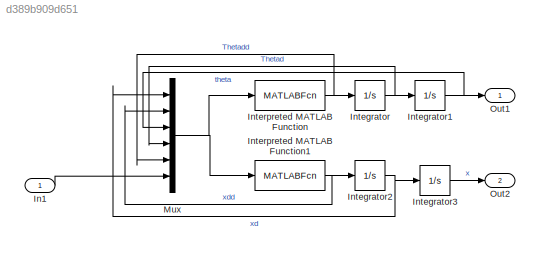
MODEL slx_d389b909d651
KIND model
CONFIG AbsTol = auto
CONFIG EnableMultiTasking = off
CONFIG FixedStep = auto
CONFIG MaxStep = auto
CONFIG MinStep = auto
CONFIG RelTol = 1e-3
CONFIG SampleTimeConstraint = Unconstrained
CONFIG SolverName = VariableStepAuto
CONFIG StartTime = 0.0
CONFIG StopTime = 10.0
BLOCK [Inport] In1
BLOCK [Integrator] Integrator
  Ports = [1, 1]
BLOCK [Integrator] Integrator1
  InitialCondition = pi
  Ports = [1, 1]
BLOCK [Integrator] Integrator2
  Ports = [1, 1]
BLOCK [Integrator] Integrator3
  InitialCondition = pi
  Ports = [1, 1]
BLOCK [MATLABFcn] Interpreted MATLAB Function
  MATLABFcn = (-m*L*u(2)*cos(u(3))-m*g*L*sin(u(3)))/(I+m*L^2)
  Ports = [1, 1]
BLOCK [MATLABFcn] Interpreted MATLAB Function1
  MATLABFcn = (u(6)+m*L*u(4)^2*sin(u(3))-m*L*u(5)*cos(u(3))-b*u(1))/(m+M)
  Ports = [1, 1]
BLOCK [Mux] Mux
  DisplayOption = bar
  Inputs = 6
  Ports = [6, 1]
BLOCK [Outport] Out1
BLOCK [Outport] Out2
  Port = 2
LINE In1:1 -> Mux:6
NET Integrator1:1 -> Mux:3, Out1:1
NET Integrator2:1 -> Integrator3:1, Mux:1
LINE Integrator3:1 -> Out2:1
NET Integrator:1 -> Integrator1:1, Mux:4
NET Interpreted MATLAB Function1:1 -> Integrator2:1, Mux:2
NET Interpreted MATLAB Function:1 -> Integrator:1, Mux:5
NET Mux:1 -> Interpreted MATLAB Function1:1, Interpreted MATLAB Function:1
note: NET lines group one-source signal fan-out (src -> all destinations, sorted); 1:1 wires keep LINE
